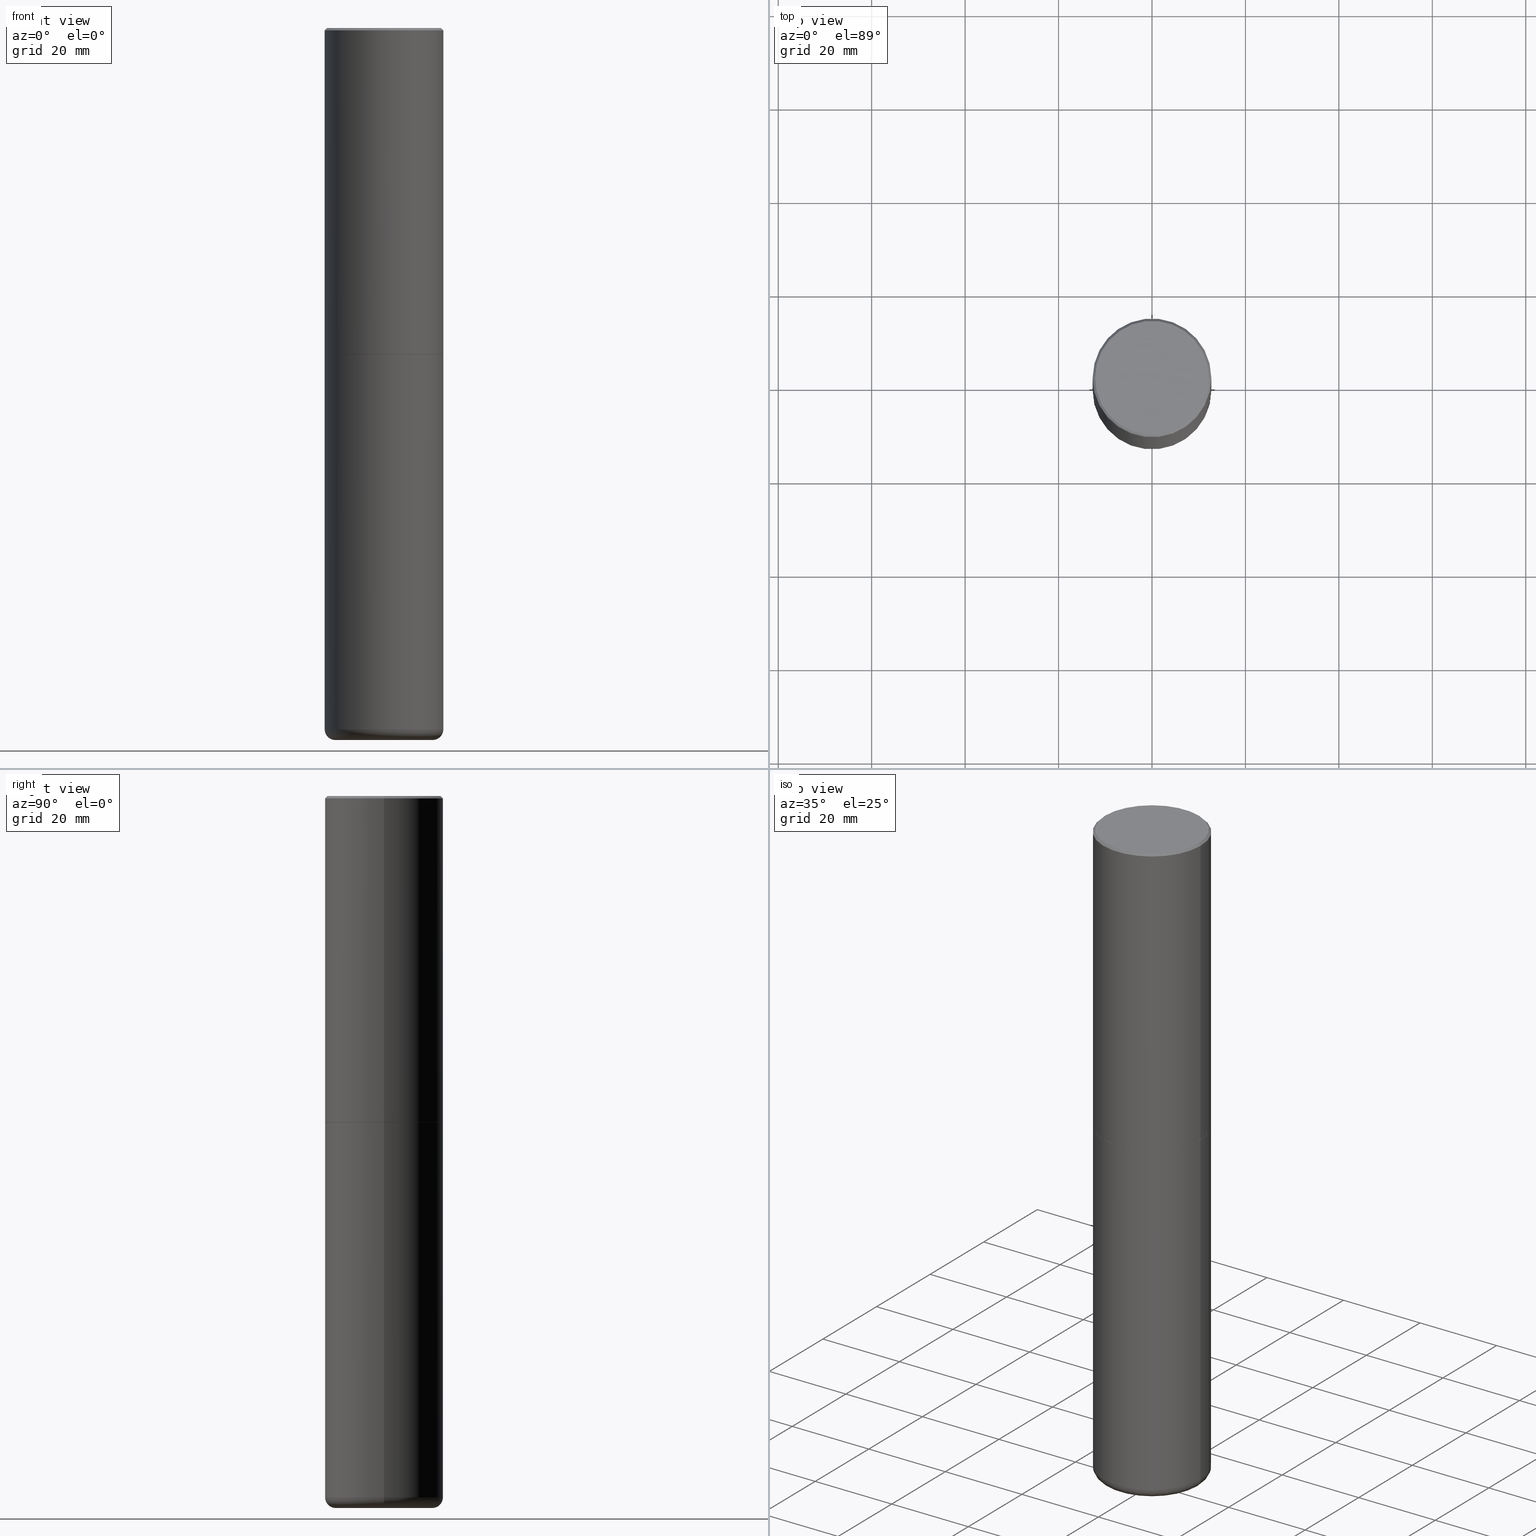
[diagram: canonical four-view strip — front | top / right | iso, engineering-drawing reading convention]
A machine part, canonical four-view strip (front | top / right | iso — engineering-drawing reading convention). The complete STEP part file that produces these views, byte-faithful:
ISO-10303-21;
HEADER;
FILE_DESCRIPTION (( 'STEP AP203' ),
    '1' );
FILE_NAME ('35741.STEP',
    '2022-11-02T20:58:25',
    ( '' ),
    ( '' ),
    'SwSTEP 2.0',
    'SolidWorks 2022',
    '' );
FILE_SCHEMA (( 'CONFIG_CONTROL_DESIGN' ));
ENDSEC;

DATA;
#1 = CARTESIAN_POINT ( 'NONE',  ( 6.725039217009127883E-29, -9.601573681818654592E-15, -2.750000000000000888 ) ) ;
#2 = ORIENTED_EDGE ( 'NONE', *, *, #136, .T. ) ;
#3 = CONICAL_SURFACE ( 'NONE', #461, 0.4999999999999990563, 0.7853981633974477239 ) ;
#4 = CONICAL_SURFACE ( 'NONE', #184, 0.4092146118051471215, 1.562069680534950544 ) ;
#5 = FACE_OUTER_BOUND ( 'NONE', #98, .T. ) ;
#6 = LINE ( 'NONE', #235, #170 ) ;
#7 = FACE_OUTER_BOUND ( 'NONE', #111, .T. ) ;
#8 = VERTEX_POINT ( 'NONE', #279 ) ;
#9 = EDGE_CURVE ( 'NONE', #137, #252, #268, .T. ) ;
#10 = CIRCLE ( 'NONE', #102, 0.09000000000000060729 ) ;
#11 = CIRCLE ( 'NONE', #139, 0.3558846118051471330 ) ;
#12 = LINE ( 'NONE', #477, #300 ) ;
#13 = EDGE_LOOP ( 'NONE', ( #172, #311 ) ) ;
#14 = PRODUCT_DEFINITION_SHAPE ( 'NONE', 'NONE',  #372 ) ;
#15 = DIRECTION ( 'NONE',  ( -2.445468806185136597E-29, 3.491481338843145583E-15, 1.000000000000000000 ) ) ;
#16 = ORIENTED_EDGE ( 'NONE', *, *, #44, .T. ) ;
#17 = VERTEX_POINT ( 'NONE', #460 ) ;
#18 = ORIENTED_EDGE ( 'NONE', *, *, #475, .T. ) ;
#19 = LINE ( 'NONE', #86, #183 ) ;
#20 = CIRCLE ( 'NONE', #249, 0.4999999999999990563 ) ;
#21 = PLANE ( 'NONE',  #367 ) ;
#22 = DIRECTION ( 'NONE',  ( 1.000000000000000000, -6.982962677686266711E-15, 4.876176775795935793E-29 ) ) ;
#23 = APPROVAL_STATUS ( 'not_yet_approved' ) ;
#24 = EDGE_CURVE ( 'NONE', #175, #492, #241, .T. ) ;
#25 = APPROVAL_DATE_TIME ( #224, #331 ) ;
#26 = VECTOR ( 'NONE', #198, 39.37007874015748143 ) ;
#27 = PERSON_AND_ORGANIZATION ( #385, #50 ) ;
#28 = CARTESIAN_POINT ( 'NONE',  ( 1.445272902499044541E-28, -2.063466667760496652E-14, -5.910003426924223646 ) ) ;
#29 = COORDINATED_UNIVERSAL_TIME_OFFSET ( 5, 0, .BEHIND. ) ;
#30 = ADVANCED_FACE ( 'NONE', ( #267 ), #120, .T. ) ;
#31 = DIRECTION ( 'NONE',  ( -2.445468806185136877E-29, 3.491481338843145188E-15, 1.000000000000000000 ) ) ;
#32 = CARTESIAN_POINT ( 'NONE',  ( 6.722593748202942280E-29, -9.598082200479810007E-15, -2.749000000000000554 ) ) ;
#33 = DIRECTION ( 'NONE',  ( -2.445468806185136597E-29, 3.491481338843145583E-15, 1.000000000000000000 ) ) ;
#34 = AXIS2_PLACEMENT_3D ( 'NONE', #166, #456, #348 ) ;
#35 = DIRECTION ( 'NONE',  ( -6.982962677686266711E-15, -1.000000000000000000, 3.491481338843145583E-15 ) ) ;
#36 = ORIENTED_EDGE ( 'NONE', *, *, #343, .F. ) ;
#37 = FACE_OUTER_BOUND ( 'NONE', #278, .T. ) ;
#38 = ORIENTED_EDGE ( 'NONE', *, *, #85, .F. ) ;
#39 = DIRECTION ( 'NONE',  ( 1.000000000000000000, -6.982962677686265133E-15, 0.000000000000000000 ) ) ;
#40 = AXIS2_PLACEMENT_3D ( 'NONE', #132, #171, #39 ) ;
#41 = LINE ( 'NONE', #318, #418 ) ;
#42 = ORIENTED_EDGE ( 'NONE', *, *, #76, .F. ) ;
#43 = LINE ( 'NONE', #200, #58 ) ;
#44 = EDGE_CURVE ( 'NONE', #357, #17, #48, .T. ) ;
#45 = DIRECTION ( 'NONE',  ( 0.7071067811865471286, -7.319954787623254468E-15, -0.7071067811865479058 ) ) ;
#46 = LINE ( 'NONE', #424, #236 ) ;
#47 = ORIENTED_EDGE ( 'NONE', *, *, #475, .F. ) ;
#48 = CIRCLE ( 'NONE', #138, 0.4092146118051471215 ) ;
#49 = AXIS2_PLACEMENT_3D ( 'NONE', #439, #107, #156 ) ;
#50 = ORGANIZATION ( 'UNSPECIFIED', 'UNSPECIFIED', '' ) ;
#51 = DIRECTION ( 'NONE',  ( 1.000000000000000000, -6.982962677686266711E-15, 0.000000000000000000 ) ) ;
#52 = ORIENTED_EDGE ( 'NONE', *, *, #390, .T. ) ;
#53 = ORIENTED_EDGE ( 'NONE', *, *, #298, .F. ) ;
#54 = DIRECTION ( 'NONE',  ( -2.445468806185136597E-29, 3.491481338843145583E-15, 1.000000000000000000 ) ) ;
#55 = CARTESIAN_POINT ( 'NONE',  ( 1.467281283711081734E-28, -2.094888803305886955E-14, -5.999999999999999112 ) ) ;
#56 = DIRECTION ( 'NONE',  ( -2.445468806185136597E-29, 3.491481338843145583E-15, 1.000000000000000000 ) ) ;
#57 = VECTOR ( 'NONE', #94, 39.37007874015748854 ) ;
#58 = VECTOR ( 'NONE', #351, 39.37007874015748143 ) ;
#59 = DIRECTION ( 'NONE',  ( -2.445468806185136597E-29, 3.491481338843145583E-15, 1.000000000000000000 ) ) ;
#60 = PERSON_AND_ORGANIZATION_ROLE ( 'creator' ) ;
#61 = CC_DESIGN_PERSON_AND_ORGANIZATION_ASSIGNMENT ( #289, #432, ( #471 ) ) ;
#62 =( LENGTH_UNIT ( ) NAMED_UNIT ( * ) SI_UNIT ( $, .METRE. ) );
#63 = CC_DESIGN_PERSON_AND_ORGANIZATION_ASSIGNMENT ( #27, #186, ( #308 ) ) ;
#64 = PERSON_AND_ORGANIZATION ( #385, #50 ) ;
#65 = AXIS2_PLACEMENT_3D ( 'NONE', #410, #368, #112 ) ;
#66 = LINE ( 'NONE', #483, #160 ) ;
#67 = ADVANCED_FACE ( 'NONE', ( #208 ), #416, .T. ) ;
#68 = PERSON_AND_ORGANIZATION_ROLE ( 'classification_officer' ) ;
#69 = CARTESIAN_POINT ( 'NONE',  ( 6.722593748202942280E-29, -9.598082200479810007E-15, -2.749000000000000554 ) ) ;
#70 = DIRECTION ( 'NONE',  ( 1.000000000000000000, -6.982962677686267499E-15, 4.876431871984425487E-29 ) ) ;
#71 = CARTESIAN_POINT ( 'NONE',  ( 0.4799999999999988165, -3.396558832296475394E-15, 1.707404996042524007E-17 ) ) ;
#72 = ORIENTED_EDGE ( 'NONE', *, *, #103, .F. ) ;
#73 = APPROVAL_PERSON_ORGANIZATION ( #293, #331, #400 ) ;
#74 = UNCERTAINTY_MEASURE_WITH_UNIT (LENGTH_MEASURE( 1.000000000000000082E-05 ), #476, 'distance_accuracy_value', 'NONE');
#75 = FACE_OUTER_BOUND ( 'NONE', #383, .T. ) ;
#76 = EDGE_CURVE ( 'NONE', #492, #357, #287, .T. ) ;
#77 = DIRECTION ( 'NONE',  ( -2.445468806185136597E-29, 3.491481338843145583E-15, 1.000000000000000000 ) ) ;
#78 = EDGE_LOOP ( 'NONE', ( #342, #240, #447, #100 ) ) ;
#79 = ORIENTED_EDGE ( 'NONE', *, *, #103, .T. ) ;
#80 = DIRECTION ( 'NONE',  ( -2.445468806185136877E-29, 3.491481338843145188E-15, 1.000000000000000000 ) ) ;
#81 = CIRCLE ( 'NONE', #214, 0.5000000000000000000 ) ;
#82 = ORIENTED_EDGE ( 'NONE', *, *, #219, .T. ) ;
#83 = EDGE_CURVE ( 'NONE', #88, #248, #408, .T. ) ;
#84 = CARTESIAN_POINT ( 'NONE',  ( -0.5000000000000000000, -1.156540650091130805E-14, -2.750000000000000444 ) ) ;
#85 = EDGE_CURVE ( 'NONE', #199, #88, #19, .T. ) ;
#86 = CARTESIAN_POINT ( 'NONE',  ( 0.4999999999999990563, -3.500078625662622769E-15, -0.02000000000000020164 ) ) ;
#87 = CARTESIAN_POINT ( 'NONE',  ( 0.4989999999999999991, -1.308607205798410036E-14, -2.750000000000000888 ) ) ;
#88 = VERTEX_POINT ( 'NONE', #340 ) ;
#89 = ORIENTED_EDGE ( 'NONE', *, *, #343, .T. ) ;
#90 = DIRECTION ( 'NONE',  ( 1.000000000000000000, -6.982962677686265133E-15, 4.883557194083112340E-29 ) ) ;
#91 = CARTESIAN_POINT ( 'NONE',  ( 4.890937612370322204E-31, -6.982962677686361867E-17, -0.02000000000000020164 ) ) ;
#92 = ORIENTED_EDGE ( 'NONE', *, *, #164, .F. ) ;
#93 = DIRECTION ( 'NONE',  ( -2.445468806185136597E-29, 3.491481338843145583E-15, 1.000000000000000000 ) ) ;
#94 = DIRECTION ( 'NONE',  ( -0.9999619230641714207, 6.952228252019259966E-15, -0.008726535498348361383 ) ) ;
#95 = CONICAL_SURFACE ( 'NONE', #376, 0.3558846118051471330, 1.535889741755008364 ) ;
#96 = CC_DESIGN_APPROVAL ( #470, ( #436 ) ) ;
#97 = CARTESIAN_POINT ( 'NONE',  ( 3.491481338843200408E-15, 0.4999999999999903411, -2.750000000000002220 ) ) ;
#98 = EDGE_LOOP ( 'NONE', ( #119, #231 ) ) ;
#99 = DIRECTION ( 'NONE',  ( 0.000000000000000000, 0.000000000000000000, 1.000000000000000000 ) ) ;
#100 = ORIENTED_EDGE ( 'NONE', *, *, #404, .F. ) ;
#101 = COORDINATED_UNIVERSAL_TIME_OFFSET ( 5, 0, .BEHIND. ) ;
#102 = AXIS2_PLACEMENT_3D ( 'NONE', #490, #35, #341 ) ;
#103 = EDGE_CURVE ( 'NONE', #413, #321, #81, .T. ) ;
#104 = DATE_AND_TIME ( #254, #378 ) ;
#105 = CARTESIAN_POINT ( 'NONE',  ( 0.000000000000000000, 0.000000000000000000, 0.000000000000000000 ) ) ;
#106 = SECURITY_CLASSIFICATION_LEVEL ( 'unclassified' ) ;
#107 = DIRECTION ( 'NONE',  ( -2.438088387897960049E-29, 3.491481338843145188E-15, 1.000000000000000000 ) ) ;
#108 = CIRCLE ( 'NONE', #478, 0.4799999999999988165 ) ;
#109 = DESIGN_CONTEXT ( 'detailed design', #482, 'design' ) ;
#110 = CARTESIAN_POINT ( 'NONE',  ( -0.4100000000000003642, -1.772144146098855475E-14, -5.910003426924223646 ) ) ;
#111 = EDGE_LOOP ( 'NONE', ( #472, #52, #47 ) ) ;
#112 = DIRECTION ( 'NONE',  ( 1.000000000000000000, -6.982962677686269077E-15, 0.000000000000000000 ) ) ;
#113 = DIRECTION ( 'NONE',  ( 1.000000000000000000, -6.982962677686267499E-15, 4.876176775795935793E-29 ) ) ;
#114 = ORIENTED_EDGE ( 'NONE', *, *, #433, .T. ) ;
#115 = DIRECTION ( 'NONE',  ( -0.9993908270190957621, 6.856857904024551737E-15, -0.03489949670250264147 ) ) ;
#116 = EDGE_CURVE ( 'NONE', #357, #315, #204, .T. ) ;
#117 = PLANE ( 'NONE',  #49 ) ;
#118 = CONICAL_SURFACE ( 'NONE', #442, 0.4989999999999999991, 0.7853981633972775267 ) ;
#119 = ORIENTED_EDGE ( 'NONE', *, *, #164, .T. ) ;
#120 = CYLINDRICAL_SURFACE ( 'NONE', #330, 0.5000000000000000000 ) ;
#121 = CARTESIAN_POINT ( 'NONE',  ( -0.4092146118051471215, -1.756159816700647873E-14, -5.999999999999999112 ) ) ;
#122 = ORIENTED_EDGE ( 'NONE', *, *, #350, .F. ) ;
#123 = DIRECTION ( 'NONE',  ( 0.7071067811864267805, -2.468850131080992517E-15, 0.7071067811866682540 ) ) ;
#124 = EDGE_CURVE ( 'NONE', #199, #167, #108, .T. ) ;
#125 = CARTESIAN_POINT ( 'NONE',  ( -0.4999999999999990563, 3.421651712066262957E-15, -0.02000000000000020164 ) ) ;
#126 = MANIFOLD_SOLID_BREP ( 'Body-Move/Copy2[2]', #407 ) ;
#127 = AXIS2_PLACEMENT_3D ( 'NONE', #148, #153, #262 ) ;
#128 = DIRECTION ( 'NONE',  ( 1.000000000000000000, -6.982962677686266711E-15, 0.000000000000000000 ) ) ;
#129 = DIRECTION ( 'NONE',  ( 1.000000000000000000, -6.982962677686267499E-15, 4.876176775795935793E-29 ) ) ;
#130 = EDGE_LOOP ( 'NONE', ( #319, #154, #131, #324 ) ) ;
#131 = ORIENTED_EDGE ( 'NONE', *, *, #226, .F. ) ;
#132 = CARTESIAN_POINT ( 'NONE',  ( 6.725039217009127883E-29, -9.601573681818654592E-15, -2.750000000000000888 ) ) ;
#133 = ORIENTED_EDGE ( 'NONE', *, *, #298, .T. ) ;
#134 = CARTESIAN_POINT ( 'NONE',  ( -0.4092146118051471215, -1.809135767165965469E-14, -5.999999999999999112 ) ) ;
#135 = ORIENTED_EDGE ( 'NONE', *, *, #316, .F. ) ;
#136 = EDGE_CURVE ( 'NONE', #315, #252, #485, .T. ) ;
#137 = VERTEX_POINT ( 'NONE', #373 ) ;
#138 = AXIS2_PLACEMENT_3D ( 'NONE', #55, #282, #420 ) ;
#139 = AXIS2_PLACEMENT_3D ( 'NONE', #288, #59, #434 ) ;
#140 = MECHANICAL_CONTEXT ( 'NONE', #273, 'mechanical' ) ;
#141 = ORIENTED_EDGE ( 'NONE', *, *, #116, .F. ) ;
#142 = ADVANCED_FACE ( 'NONE', ( #37 ), #118, .T. ) ;
#143 = CLOSED_SHELL ( 'NONE', ( #465, #67, #30, #263, #291, #480, #488, #244, #425 ) ) ;
#144 = CIRCLE ( 'NONE', #325, 0.5000000000000000000 ) ;
#145 = DIRECTION ( 'NONE',  ( 2.445468806185136597E-29, -3.491481338843145583E-15, -1.000000000000000000 ) ) ;
#146 = SHAPE_DEFINITION_REPRESENTATION ( #14, #305 ) ;
#147 = DATE_TIME_ROLE ( 'creation_date' ) ;
#148 = CARTESIAN_POINT ( 'NONE',  ( 6.725039217009127883E-29, -9.601573681818654592E-15, -2.750000000000000888 ) ) ;
#149 = COORDINATED_UNIVERSAL_TIME_OFFSET ( 5, 0, .BEHIND. ) ;
#150 = AXIS2_PLACEMENT_3D ( 'NONE', #423, #54, #90 ) ;
#151 = DIRECTION ( 'NONE',  ( -2.445468806185136597E-29, 3.491481338843145583E-15, 1.000000000000000000 ) ) ;
#152 = CC_DESIGN_DATE_AND_TIME_ASSIGNMENT ( #258, #397, ( #436 ) ) ;
#153 = DIRECTION ( 'NONE',  ( -2.445468806185136597E-29, 3.491481338843145583E-15, 1.000000000000000000 ) ) ;
#154 = ORIENTED_EDGE ( 'NONE', *, *, #116, .T. ) ;
#155 = ADVANCED_FACE ( 'NONE', ( #75 ), #269, .T. ) ;
#156 = DIRECTION ( 'NONE',  ( 1.000000000000000000, -6.982962677686265922E-15, 4.876176775795935793E-29 ) ) ;
#157 = ORIENTED_EDGE ( 'NONE', *, *, #309, .T. ) ;
#158 = CC_DESIGN_DATE_AND_TIME_ASSIGNMENT ( #188, #147, ( #372 ) ) ;
#159 = CARTESIAN_POINT ( 'NONE',  ( 0.5000000000000000000, -1.308956353932294336E-14, -2.749000000000000554 ) ) ;
#160 = VECTOR ( 'NONE', #31, 39.37007874015748143 ) ;
#161 = EDGE_LOOP ( 'NONE', ( #141, #16, #457, #36 ) ) ;
#162 = LOCAL_TIME ( 16, 58, 25.00000000000000000, #438 ) ;
#163 = DIRECTION ( 'NONE',  ( 2.438088387897960049E-29, -3.491481338843145188E-15, -1.000000000000000000 ) ) ;
#164 = EDGE_CURVE ( 'NONE', #167, #199, #285, .T. ) ;
#165 = ORIENTED_EDGE ( 'NONE', *, *, #83, .F. ) ;
#166 = CARTESIAN_POINT ( 'NONE',  ( 1.467167470649067006E-28, -2.094726308416916987E-14, -5.999534596140719600 ) ) ;
#167 = VERTEX_POINT ( 'NONE', #196 ) ;
#168 = CARTESIAN_POINT ( 'NONE',  ( 4.890937612370322204E-31, -6.982962677686361867E-17, -0.02000000000000020164 ) ) ;
#169 = EDGE_LOOP ( 'NONE', ( #474, #286 ) ) ;
#170 = VECTOR ( 'NONE', #276, 39.37007874015748143 ) ;
#171 = DIRECTION ( 'NONE',  ( -2.445468806185136597E-29, 3.491481338843145583E-15, 1.000000000000000000 ) ) ;
#172 = ORIENTED_EDGE ( 'NONE', *, *, #9, .T. ) ;
#173 = ADVANCED_FACE ( 'NONE', ( #344 ), #117, .F. ) ;
#174 = DIRECTION ( 'NONE',  ( 1.000000000000000000, 0.000000000000000000, 0.000000000000000000 ) ) ;
#175 = VERTEX_POINT ( 'NONE', #446 ) ;
#176 = EDGE_LOOP ( 'NONE', ( #18, #114, #375, #42 ) ) ;
#177 = AXIS2_PLACEMENT_3D ( 'NONE', #313, #77, #387 ) ;
#178 = CARTESIAN_POINT ( 'NONE',  ( 1.467281283711081734E-28, -2.094888803305886955E-14, -5.999999999999999112 ) ) ;
#179 = EDGE_CURVE ( 'NONE', #321, #413, #215, .T. ) ;
#180 = EDGE_CURVE ( 'NONE', #321, #88, #66, .T. ) ;
#181 =( NAMED_UNIT ( * ) PLANE_ANGLE_UNIT ( ) SI_UNIT ( $, .RADIAN. ) );
#182 =( NAMED_UNIT ( * ) SI_UNIT ( $, .STERADIAN. ) SOLID_ANGLE_UNIT ( ) );
#183 = VECTOR ( 'NONE', #45, 39.37007874015748143 ) ;
#184 = AXIS2_PLACEMENT_3D ( 'NONE', #421, #202, #353 ) ;
#185 = PERSON_AND_ORGANIZATION ( #385, #50 ) ;
#186 = PERSON_AND_ORGANIZATION_ROLE ( 'creator' ) ;
#187 = DIRECTION ( 'NONE',  ( -2.445468806185136597E-29, 3.491481338843145583E-15, 1.000000000000000000 ) ) ;
#188 = DATE_AND_TIME ( #301, #428 ) ;
#189 = CYLINDRICAL_SURFACE ( 'NONE', #366, 0.4999999999999995004 ) ;
#190 = TOROIDAL_SURFACE ( 'NONE', #345, 0.4100000000000003642, 0.09000000000000064893 ) ;
#191 = DIRECTION ( 'NONE',  ( 1.000000000000000000, -6.982962677686265133E-15, 4.883557194083112340E-29 ) ) ;
#192 = ADVANCED_FACE ( 'NONE', ( #297 ), #275, .T. ) ;
#193 = DIRECTION ( 'NONE',  ( 7.105427357601001859E-15, 1.000000000000000000, -3.491481338843145583E-15 ) ) ;
#194 = ORIENTED_EDGE ( 'NONE', *, *, #350, .T. ) ;
#195 = EDGE_LOOP ( 'NONE', ( #339, #2, #284, #122 ) ) ;
#196 = CARTESIAN_POINT ( 'NONE',  ( -0.4799999999999988165, 3.386736898677831703E-15, 1.707404996037808406E-17 ) ) ;
#197 = CARTESIAN_POINT ( 'NONE',  ( 4.890937612370322204E-31, -6.982962677686361867E-17, -0.02000000000000020164 ) ) ;
#198 = DIRECTION ( 'NONE',  ( -2.445468806185136877E-29, 3.491481338843145188E-15, 1.000000000000000000 ) ) ;
#199 = VERTEX_POINT ( 'NONE', #71 ) ;
#200 = CARTESIAN_POINT ( 'NONE',  ( -0.4999999999999990563, 3.421651712066262957E-15, -0.02000000000000020164 ) ) ;
#201 = ORIENTED_EDGE ( 'NONE', *, *, #316, .T. ) ;
#202 = DIRECTION ( 'NONE',  ( 2.445468806185136597E-29, -3.491481338843145583E-15, -1.000000000000000000 ) ) ;
#203 = ORIENTED_EDGE ( 'NONE', *, *, #445, .F. ) ;
#204 = CIRCLE ( 'NONE', #417, 0.09000000000000060729 ) ;
#205 = EDGE_LOOP ( 'NONE', ( #464, #304, #251 ) ) ;
#206 = EDGE_CURVE ( 'NONE', #415, #8, #220, .T. ) ;
#207 = DIRECTION ( 'NONE',  ( 2.445468806185136597E-29, -3.491481338843145583E-15, -1.000000000000000000 ) ) ;
#208 = FACE_OUTER_BOUND ( 'NONE', #130, .T. ) ;
#209 = FACE_OUTER_BOUND ( 'NONE', #389, .T. ) ;
#210 = DIRECTION ( 'NONE',  ( -2.445468806185136597E-29, 3.491481338843145583E-15, 1.000000000000000000 ) ) ;
#211 = EDGE_CURVE ( 'NONE', #17, #245, #10, .T. ) ;
#212 = DIRECTION ( 'NONE',  ( -1.000000000000000000, 6.982962677686265922E-15, -4.876176775795935793E-29 ) ) ;
#213 = VERTEX_POINT ( 'NONE', #491 ) ;
#214 = AXIS2_PLACEMENT_3D ( 'NONE', #32, #93, #294 ) ;
#215 = CIRCLE ( 'NONE', #486, 0.5000000000000000000 ) ;
#216 = AXIS2_PLACEMENT_3D ( 'NONE', #329, #99, #174 ) ;
#217 = APPROVAL_ROLE ( '' ) ;
#218 = CARTESIAN_POINT ( 'NONE',  ( 1.467281283711081734E-28, -2.094888803305886955E-14, -5.999999999999999112 ) ) ;
#219 = EDGE_CURVE ( 'NONE', #213, #492, #395, .T. ) ;
#220 = CIRCLE ( 'NONE', #451, 0.4989999999999999991 ) ;
#221 = CC_DESIGN_SECURITY_CLASSIFICATION ( #436, ( #308 ) ) ;
#222 = PERSON_AND_ORGANIZATION_ROLE ( 'design_supplier' ) ;
#223 = DIRECTION ( 'NONE',  ( 1.000000000000000000, -6.982962677686269866E-15, 0.000000000000000000 ) ) ;
#224 = DATE_AND_TIME ( #261, #162 ) ;
#225 = FACE_OUTER_BOUND ( 'NONE', #161, .T. ) ;
#226 = EDGE_CURVE ( 'NONE', #245, #315, #361, .T. ) ;
#227 = DIRECTION ( 'NONE',  ( -2.445468806185136597E-29, 3.491481338843145583E-15, 1.000000000000000000 ) ) ;
#228 = CONICAL_SURFACE ( 'NONE', #352, 0.4999999999999990563, 0.7853981633974477239 ) ;
#229 = AXIS2_PLACEMENT_3D ( 'NONE', #218, #15, #356 ) ;
#230 = CARTESIAN_POINT ( 'NONE',  ( 6.725039217009127883E-29, -9.601573681818654592E-15, -2.750000000000000888 ) ) ;
#231 = ORIENTED_EDGE ( 'NONE', *, *, #124, .T. ) ;
#232 = CARTESIAN_POINT ( 'NONE',  ( -0.5000000000000000000, 3.552713678800500929E-15, -2.459467545127452891E-29 ) ) ;
#233 = CARTESIAN_POINT ( 'NONE',  ( 3.351822085289399659E-15, 0.4799999999999988165, -1.667374017664504893E-15 ) ) ;
#234 = DIRECTION ( 'NONE',  ( -2.445468806185136597E-29, 3.491481338843145583E-15, 1.000000000000000000 ) ) ;
#235 = CARTESIAN_POINT ( 'NONE',  ( -0.4989999999999999991, -6.055965430375753882E-15, -2.750000000000000888 ) ) ;
#236 = VECTOR ( 'NONE', #80, 39.37007874015748143 ) ;
#237 = CC_DESIGN_PERSON_AND_ORGANIZATION_ASSIGNMENT ( #332, #68, ( #436 ) ) ;
#238 = LINE ( 'NONE', #380, #26 ) ;
#239 = ORIENTED_EDGE ( 'NONE', *, *, #136, .F. ) ;
#240 = ORIENTED_EDGE ( 'NONE', *, *, #85, .T. ) ;
#241 = LINE ( 'NONE', #448, #274 ) ;
#242 = CARTESIAN_POINT ( 'NONE',  ( 6.725039217009125641E-29, -9.601573681818653015E-15, -2.750000000000000444 ) ) ;
#243 = ORIENTED_EDGE ( 'NONE', *, *, #179, .F. ) ;
#244 = ADVANCED_FACE ( 'NONE', ( #225 ), #190, .T. ) ;
#245 = VERTEX_POINT ( 'NONE', #370 ) ;
#246 = ADVANCED_FACE ( 'NONE', ( #333 ), #189, .T. ) ;
#247 = DIRECTION ( 'NONE',  ( 0.9993908270190957621, -6.978169709227547799E-15, -0.03489949670250264147 ) ) ;
#248 = VERTEX_POINT ( 'NONE', #125 ) ;
#249 = AXIS2_PLACEMENT_3D ( 'NONE', #91, #271, #51 ) ;
#250 = APPROVAL ( #23, 'UNSPECIFIED' ) ;
#251 = ORIENTED_EDGE ( 'NONE', *, *, #219, .F. ) ;
#252 = VERTEX_POINT ( 'NONE', #84 ) ;
#253 = APPLICATION_PROTOCOL_DEFINITION ( 'international standard', 'config_control_design', 1994, #482 ) ;
#254 = CALENDAR_DATE ( 2022, 2, 11 ) ;
#255 = VECTOR ( 'NONE', #403, 39.37007874015748143 ) ;
#256 = APPROVAL_DATE_TIME ( #104, #250 ) ;
#257 = EDGE_CURVE ( 'NONE', #248, #88, #20, .T. ) ;
#258 = DATE_AND_TIME ( #440, #489 ) ;
#259 = CARTESIAN_POINT ( 'NONE',  ( -4.175405657340879278E-46, 5.961372681521788801E-32, 1.707404996040164512E-17 ) ) ;
#260 = CIRCLE ( 'NONE', #40, 0.4989999999999999991 ) ;
#261 = CALENDAR_DATE ( 2022, 2, 11 ) ;
#262 = DIRECTION ( 'NONE',  ( 1.000000000000000000, -6.982962677686265133E-15, 0.000000000000000000 ) ) ;
#263 = ADVANCED_FACE ( 'NONE', ( #7 ), #95, .F. ) ;
#264 = CARTESIAN_POINT ( 'NONE',  ( 1.467167470649067006E-28, -2.094726308416916987E-14, -5.999534596140719600 ) ) ;
#265 = DIRECTION ( 'NONE',  ( -1.000000000000000000, 7.105427357601006592E-15, 0.000000000000000000 ) ) ;
#266 = ORIENTED_EDGE ( 'NONE', *, *, #76, .T. ) ;
#267 = FACE_OUTER_BOUND ( 'NONE', #195, .T. ) ;
#268 = CIRCLE ( 'NONE', #459, 0.5000000000000000000 ) ;
#269 = CYLINDRICAL_SURFACE ( 'NONE', #386, 0.4999999999999995004 ) ;
#270 = DIRECTION ( 'NONE',  ( -2.445468806185136597E-29, 3.491481338843145583E-15, 1.000000000000000000 ) ) ;
#271 = DIRECTION ( 'NONE',  ( -2.445468806185136597E-29, 3.491481338843145583E-15, 1.000000000000000000 ) ) ;
#272 = CARTESIAN_POINT ( 'NONE',  ( -0.5000000000000001110, -1.156540650091130647E-14, -5.910003426924223646 ) ) ;
#273 = APPLICATION_CONTEXT ( 'configuration controlled 3d designs of mechanical parts and assemblies' ) ;
#274 = VECTOR ( 'NONE', #115, 39.37007874015747433 ) ;
#275 = CONICAL_SURFACE ( 'NONE', #127, 0.4989999999999999991, 0.7853981633972775267 ) ;
#276 = DIRECTION ( 'NONE',  ( -0.7071067811864267805, 7.493145998869918709E-15, 0.7071067811866682540 ) ) ;
#277 =( GEOMETRIC_REPRESENTATION_CONTEXT ( 3 ) GLOBAL_UNCERTAINTY_ASSIGNED_CONTEXT ( ( #74 ) ) GLOBAL_UNIT_ASSIGNED_CONTEXT ( ( #476, #181, #182 ) ) REPRESENTATION_CONTEXT ( 'NONE', 'WORKASPACE' ) );
#278 = EDGE_LOOP ( 'NONE', ( #135, #455, #133, #72 ) ) ;
#279 = CARTESIAN_POINT ( 'NONE',  ( 0.4989999999999999991, -1.308607205798410036E-14, -2.750000000000000888 ) ) ;
#280 = ADVANCED_FACE ( 'NONE', ( #466 ), #3, .T. ) ;
#281 = FACE_OUTER_BOUND ( 'NONE', #450, .T. ) ;
#282 = DIRECTION ( 'NONE',  ( -2.445468806185136597E-29, 3.491481338843145583E-15, 1.000000000000000000 ) ) ;
#283 = DIRECTION ( 'NONE',  ( -1.000000000000000000, 6.982962677686269866E-15, 0.000000000000000000 ) ) ;
#284 = ORIENTED_EDGE ( 'NONE', *, *, #9, .F. ) ;
#285 = CIRCLE ( 'NONE', #336, 0.4799999999999988165 ) ;
#286 = ORIENTED_EDGE ( 'NONE', *, *, #206, .F. ) ;
#287 = LINE ( 'NONE', #134, #57 ) ;
#288 = CARTESIAN_POINT ( 'NONE',  ( 1.467167470649067006E-28, -2.094726308416916987E-14, -5.999534596140719600 ) ) ;
#289 = PERSON_AND_ORGANIZATION ( #385, #50 ) ;
#290 = AXIS2_PLACEMENT_3D ( 'NONE', #233, #163, #414 ) ;
#291 = ADVANCED_FACE ( 'NONE', ( #310 ), #307, .F. ) ;
#292 = FACE_OUTER_BOUND ( 'NONE', #13, .T. ) ;
#293 = PERSON_AND_ORGANIZATION ( #385, #50 ) ;
#294 = DIRECTION ( 'NONE',  ( 1.000000000000000000, -6.982962677686266711E-15, 0.000000000000000000 ) ) ;
#295 = CC_DESIGN_PERSON_AND_ORGANIZATION_ASSIGNMENT ( #64, #222, ( #308 ) ) ;
#296 = APPROVAL_DATE_TIME ( #481, #470 ) ;
#297 = FACE_OUTER_BOUND ( 'NONE', #468, .T. ) ;
#298 = EDGE_CURVE ( 'NONE', #8, #321, #454, .T. ) ;
#299 = AXIS2_PLACEMENT_3D ( 'NONE', #264, #443, #223 ) ;
#300 = VECTOR ( 'NONE', #362, 39.37007874015748854 ) ;
#301 = CALENDAR_DATE ( 2022, 2, 11 ) ;
#302 = DIRECTION ( 'NONE',  ( -2.445468806185136597E-29, 3.491481338843145583E-15, 1.000000000000000000 ) ) ;
#303 = DIRECTION ( 'NONE',  ( -2.445468806185136597E-29, 3.491481338843145583E-15, 1.000000000000000000 ) ) ;
#304 = ORIENTED_EDGE ( 'NONE', *, *, #24, .T. ) ;
#305 = ADVANCED_BREP_SHAPE_REPRESENTATION ( '35741', ( #444, #126, #216 ), #277 ) ;
#306 = CARTESIAN_POINT ( 'NONE',  ( 0.000000000000000000, 0.000000000000000000, 0.000000000000000000 ) ) ;
#307 = CONICAL_SURFACE ( 'NONE', #34, 0.3558846118051471330, 1.535889741755008364 ) ;
#308 = PRODUCT_DEFINITION_FORMATION_WITH_SPECIFIED_SOURCE ( 'ANY', '', #471, .NOT_KNOWN. ) ;
#309 = EDGE_CURVE ( 'NONE', #8, #415, #260, .T. ) ;
#310 = FACE_OUTER_BOUND ( 'NONE', #205, .T. ) ;
#311 = ORIENTED_EDGE ( 'NONE', *, *, #377, .T. ) ;
#312 = EDGE_LOOP ( 'NONE', ( #38, #92, #384, #467 ) ) ;
#313 = CARTESIAN_POINT ( 'NONE',  ( 1.445272902499044541E-28, -2.063466667760496652E-14, -5.910003426924223646 ) ) ;
#314 = DIRECTION ( 'NONE',  ( -1.000000000000000000, 6.982962677686266711E-15, 0.000000000000000000 ) ) ;
#315 = VERTEX_POINT ( 'NONE', #272 ) ;
#316 = EDGE_CURVE ( 'NONE', #415, #413, #6, .T. ) ;
#317 = VECTOR ( 'NONE', #123, 39.37007874015748143 ) ;
#318 = CARTESIAN_POINT ( 'NONE',  ( 0.3558846118051471330, -2.338880875089607986E-14, -5.999534596140719600 ) ) ;
#319 = ORIENTED_EDGE ( 'NONE', *, *, #445, .T. ) ;
#320 = PLANE ( 'NONE',  #290 ) ;
#321 = VERTEX_POINT ( 'NONE', #159 ) ;
#322 = LENGTH_MEASURE_WITH_UNIT ( LENGTH_MEASURE( 0.02539999999999999897 ), #62 );
#323 = ORIENTED_EDGE ( 'NONE', *, *, #377, .F. ) ;
#324 = ORIENTED_EDGE ( 'NONE', *, *, #211, .F. ) ;
#325 = AXIS2_PLACEMENT_3D ( 'NONE', #242, #374, #349 ) ;
#326 = CC_DESIGN_APPROVAL ( #331, ( #308 ) ) ;
#327 = CARTESIAN_POINT ( 'NONE',  ( -0.3558846118051471330, -1.846213412237096104E-14, -5.999534596140719600 ) ) ;
#328 = ADVANCED_FACE ( 'NONE', ( #5 ), #320, .F. ) ;
#329 = CARTESIAN_POINT ( 'NONE',  ( 0.000000000000000000, 0.000000000000000000, 0.000000000000000000 ) ) ;
#330 = AXIS2_PLACEMENT_3D ( 'NONE', #409, #270, #411 ) ;
#331 = APPROVAL ( #365, 'UNSPECIFIED' ) ;
#332 = PERSON_AND_ORGANIZATION ( #385, #50 ) ;
#333 = FACE_OUTER_BOUND ( 'NONE', #381, .T. ) ;
#334 = APPROVAL_STATUS ( 'not_yet_approved' ) ;
#335 = CARTESIAN_POINT ( 'NONE',  ( 0.000000000000000000, 0.000000000000000000, 0.000000000000000000 ) ) ;
#336 = AXIS2_PLACEMENT_3D ( 'NONE', #405, #302, #70 ) ;
#337 = AXIS2_PLACEMENT_3D ( 'NONE', #178, #145, #469 ) ;
#338 = DIRECTION ( 'NONE',  ( 1.000000000000000000, -6.982962677686266711E-15, 0.000000000000000000 ) ) ;
#339 = ORIENTED_EDGE ( 'NONE', *, *, #226, .T. ) ;
#340 = CARTESIAN_POINT ( 'NONE',  ( 0.4999999999999990563, -3.500078625662622769E-15, -0.02000000000000020164 ) ) ;
#341 = DIRECTION ( 'NONE',  ( 1.000000000000000000, -6.982962677686264344E-15, 0.000000000000000000 ) ) ;
#342 = ORIENTED_EDGE ( 'NONE', *, *, #124, .F. ) ;
#343 = EDGE_CURVE ( 'NONE', #315, #245, #435, .T. ) ;
#344 = FACE_OUTER_BOUND ( 'NONE', #169, .T. ) ;
#345 = AXIS2_PLACEMENT_3D ( 'NONE', #28, #303, #191 ) ;
#346 = CC_DESIGN_APPROVAL ( #250, ( #372 ) ) ;
#347 = CC_DESIGN_PERSON_AND_ORGANIZATION_ASSIGNMENT ( #396, #60, ( #372 ) ) ;
#348 = DIRECTION ( 'NONE',  ( -1.000000000000000000, 6.982962677686269866E-15, 0.000000000000000000 ) ) ;
#349 = DIRECTION ( 'NONE',  ( 1.000000000000000000, -6.982962677686266711E-15, 0.000000000000000000 ) ) ;
#350 = EDGE_CURVE ( 'NONE', #245, #137, #46, .T. ) ;
#351 = DIRECTION ( 'NONE',  ( -0.7071067811865471286, 2.468850131082252722E-15, -0.7071067811865479058 ) ) ;
#352 = AXIS2_PLACEMENT_3D ( 'NONE', #168, #419, #458 ) ;
#353 = DIRECTION ( 'NONE',  ( -1.000000000000000000, 6.982962677686265922E-15, 0.000000000000000000 ) ) ;
#354 = ORIENTED_EDGE ( 'NONE', *, *, #180, .T. ) ;
#355 = DIRECTION ( 'NONE',  ( 2.445468806185136597E-29, -3.491481338843145583E-15, -1.000000000000000000 ) ) ;
#356 = DIRECTION ( 'NONE',  ( 1.000000000000000000, -6.982962677686265922E-15, 0.000000000000000000 ) ) ;
#357 = VERTEX_POINT ( 'NONE', #121 ) ;
#358 = DIRECTION ( 'NONE',  ( 1.000000000000000000, -6.982962677686266711E-15, 0.000000000000000000 ) ) ;
#359 = FACE_OUTER_BOUND ( 'NONE', #176, .T. ) ;
#360 = ORIENTED_EDGE ( 'NONE', *, *, #393, .F. ) ;
#361 = CIRCLE ( 'NONE', #65, 0.5000000000000001110 ) ;
#362 = DIRECTION ( 'NONE',  ( 0.9999619230641714207, -6.890705306874752753E-15, -0.008726535498348361383 ) ) ;
#363 = ADVANCED_FACE ( 'NONE', ( #379 ), #228, .T. ) ;
#364 = COORDINATED_UNIVERSAL_TIME_OFFSET ( 5, 0, .BEHIND. ) ;
#365 = APPROVAL_STATUS ( 'not_yet_approved' ) ;
#366 = AXIS2_PLACEMENT_3D ( 'NONE', #335, #33, #129 ) ;
#367 = AXIS2_PLACEMENT_3D ( 'NONE', #97, #437, #212 ) ;
#368 = DIRECTION ( 'NONE',  ( -2.445468806185136597E-29, 3.491481338843145583E-15, 1.000000000000000000 ) ) ;
#369 = APPROVAL_ROLE ( '' ) ;
#370 = CARTESIAN_POINT ( 'NONE',  ( 0.5000000000000001110, -2.412614801644810303E-14, -5.910003426924223646 ) ) ;
#371 = DIRECTION ( 'NONE',  ( -2.445468806185136597E-29, 3.491481338843145583E-15, 1.000000000000000000 ) ) ;
#372 = PRODUCT_DEFINITION ( 'UNKNOWN', '', #308, #109 ) ;
#373 = CARTESIAN_POINT ( 'NONE',  ( 0.5000000000000000000, -1.309305502066178637E-14, -2.750000000000000444 ) ) ;
#374 = DIRECTION ( 'NONE',  ( -2.445468806185136597E-29, 3.491481338843145583E-15, 1.000000000000000000 ) ) ;
#375 = ORIENTED_EDGE ( 'NONE', *, *, #44, .F. ) ;
#376 = AXIS2_PLACEMENT_3D ( 'NONE', #412, #207, #283 ) ;
#377 = EDGE_CURVE ( 'NONE', #252, #137, #144, .T. ) ;
#378 = LOCAL_TIME ( 16, 58, 25.00000000000000000, #101 ) ;
#379 = FACE_OUTER_BOUND ( 'NONE', #312, .T. ) ;
#380 = CARTESIAN_POINT ( 'NONE',  ( -0.4999999999999995004, 3.552713678800497379E-15, -2.459467545127450649E-29 ) ) ;
#381 = EDGE_LOOP ( 'NONE', ( #360, #79, #354, #430 ) ) ;
#382 = CARTESIAN_POINT ( 'NONE',  ( -0.4989999999999999991, -6.050666976027531480E-15, -2.750000000000000888 ) ) ;
#383 = EDGE_LOOP ( 'NONE', ( #429, #406, #165, #422 ) ) ;
#384 = ORIENTED_EDGE ( 'NONE', *, *, #404, .T. ) ;
#385 = PERSON ( 'UNSPECIFIED', 'UNSPECIFIED', 'UNSPECIFIED', ('UNSPECIFIED'), ('UNSPECIFIED'), ('UNSPECIFIED') ) ;
#386 = AXIS2_PLACEMENT_3D ( 'NONE', #306, #187, #113 ) ;
#387 = DIRECTION ( 'NONE',  ( 1.000000000000000000, -6.982962677686269077E-15, 0.000000000000000000 ) ) ;
#388 = CIRCLE ( 'NONE', #229, 0.4092146118051471215 ) ;
#389 = EDGE_LOOP ( 'NONE', ( #239, #89, #194, #323 ) ) ;
#390 = EDGE_CURVE ( 'NONE', #175, #213, #41, .T. ) ;
#391 = ORIENTED_EDGE ( 'NONE', *, *, #433, .F. ) ;
#392 = PERSON_AND_ORGANIZATION ( #385, #50 ) ;
#393 = EDGE_CURVE ( 'NONE', #413, #248, #238, .T. ) ;
#394 = CYLINDRICAL_SURFACE ( 'NONE', #473, 0.5000000000000000000 ) ;
#395 = CIRCLE ( 'NONE', #299, 0.3558846118051471330 ) ;
#396 = PERSON_AND_ORGANIZATION ( #385, #50 ) ;
#397 = DATE_TIME_ROLE ( 'classification_date' ) ;
#398 = DIRECTION ( 'NONE',  ( 1.000000000000000000, -6.982962677686265133E-15, 0.000000000000000000 ) ) ;
#399 = LOCAL_TIME ( 16, 58, 25.00000000000000000, #29 ) ;
#400 = APPROVAL_ROLE ( '' ) ;
#401 = DIRECTION ( 'NONE',  ( 1.000000000000000000, -6.982962677686265133E-15, 0.000000000000000000 ) ) ;
#402 = PRODUCT_RELATED_PRODUCT_CATEGORY ( 'detail', '', ( #471 ) ) ;
#403 = DIRECTION ( 'NONE',  ( -2.445468806185136877E-29, 3.491481338843145188E-15, 1.000000000000000000 ) ) ;
#404 = EDGE_CURVE ( 'NONE', #167, #248, #43, .T. ) ;
#405 = CARTESIAN_POINT ( 'NONE',  ( -4.175405657340879278E-46, 5.961372681521788801E-32, 1.707404996040164512E-17 ) ) ;
#406 = ORIENTED_EDGE ( 'NONE', *, *, #393, .T. ) ;
#407 = CLOSED_SHELL ( 'NONE', ( #192, #155, #280, #363, #246, #142, #173, #328 ) ) ;
#408 = CIRCLE ( 'NONE', #426, 0.4999999999999990563 ) ;
#409 = CARTESIAN_POINT ( 'NONE',  ( 0.000000000000000000, 0.000000000000000000, 0.000000000000000000 ) ) ;
#410 = CARTESIAN_POINT ( 'NONE',  ( 1.445272902499044541E-28, -2.063466667760496652E-14, -5.910003426924223646 ) ) ;
#411 = DIRECTION ( 'NONE',  ( 1.000000000000000000, -6.982962677686266711E-15, 4.876176775795935793E-29 ) ) ;
#412 = CARTESIAN_POINT ( 'NONE',  ( 1.467167470649067006E-28, -2.094726308416916987E-14, -5.999534596140719600 ) ) ;
#413 = VERTEX_POINT ( 'NONE', #462 ) ;
#414 = DIRECTION ( 'NONE',  ( -1.000000000000000000, 6.982962677686265922E-15, -4.876176775795935793E-29 ) ) ;
#415 = VERTEX_POINT ( 'NONE', #382 ) ;
#416 = TOROIDAL_SURFACE ( 'NONE', #150, 0.4100000000000003642, 0.09000000000000064893 ) ;
#417 = AXIS2_PLACEMENT_3D ( 'NONE', #110, #193, #265 ) ;
#418 = VECTOR ( 'NONE', #247, 39.37007874015747433 ) ;
#419 = DIRECTION ( 'NONE',  ( 2.445468806185136597E-29, -3.491481338843145583E-15, -1.000000000000000000 ) ) ;
#420 = DIRECTION ( 'NONE',  ( 1.000000000000000000, -6.982962677686265922E-15, 0.000000000000000000 ) ) ;
#421 = CARTESIAN_POINT ( 'NONE',  ( 1.467281283711081734E-28, -2.094888803305886955E-14, -5.999999999999999112 ) ) ;
#422 = ORIENTED_EDGE ( 'NONE', *, *, #180, .F. ) ;
#423 = CARTESIAN_POINT ( 'NONE',  ( 1.445272902499044541E-28, -2.063466667760496652E-14, -5.910003426924223646 ) ) ;
#424 = CARTESIAN_POINT ( 'NONE',  ( 0.5000000000000000000, -3.491481338843133355E-15, 2.438088387897967896E-29 ) ) ;
#425 = ADVANCED_FACE ( 'NONE', ( #281 ), #4, .F. ) ;
#426 = AXIS2_PLACEMENT_3D ( 'NONE', #431, #210, #358 ) ;
#427 = APPLICATION_PROTOCOL_DEFINITION ( 'international standard', 'config_control_design', 1994, #273 ) ;
#428 = LOCAL_TIME ( 16, 58, 25.00000000000000000, #364 ) ;
#429 = ORIENTED_EDGE ( 'NONE', *, *, #179, .T. ) ;
#430 = ORIENTED_EDGE ( 'NONE', *, *, #257, .F. ) ;
#431 = CARTESIAN_POINT ( 'NONE',  ( 4.890937612370322204E-31, -6.982962677686361867E-17, -0.02000000000000020164 ) ) ;
#432 = PERSON_AND_ORGANIZATION_ROLE ( 'design_owner' ) ;
#433 = EDGE_CURVE ( 'NONE', #213, #17, #12, .T. ) ;
#434 = DIRECTION ( 'NONE',  ( 1.000000000000000000, -6.982962677686269866E-15, 0.000000000000000000 ) ) ;
#435 = CIRCLE ( 'NONE', #177, 0.5000000000000001110 ) ;
#436 = SECURITY_CLASSIFICATION ( '', '', #106 ) ;
#437 = DIRECTION ( 'NONE',  ( 2.438088387897960049E-29, -3.491481338843145188E-15, -1.000000000000000000 ) ) ;
#438 = COORDINATED_UNIVERSAL_TIME_OFFSET ( 5, 0, .BEHIND. ) ;
#439 = CARTESIAN_POINT ( 'NONE',  ( 6.725039217009127883E-29, -9.601573681818654592E-15, -2.750000000000000888 ) ) ;
#440 = CALENDAR_DATE ( 2022, 2, 11 ) ;
#441 = DIRECTION ( 'NONE',  ( -2.445468806185136597E-29, 3.491481338843145583E-15, 1.000000000000000000 ) ) ;
#442 = AXIS2_PLACEMENT_3D ( 'NONE', #1, #227, #398 ) ;
#443 = DIRECTION ( 'NONE',  ( -2.445468806185136597E-29, 3.491481338843145583E-15, 1.000000000000000000 ) ) ;
#444 = MANIFOLD_SOLID_BREP ( 'Body-Move/Copy2[1]', #143 ) ;
#445 = EDGE_CURVE ( 'NONE', #17, #357, #388, .T. ) ;
#446 = CARTESIAN_POINT ( 'NONE',  ( 1.464102224097647998E-28, -2.090424519251506735E-14, -5.987106831646211269 ) ) ;
#447 = ORIENTED_EDGE ( 'NONE', *, *, #83, .T. ) ;
#448 = CARTESIAN_POINT ( 'NONE',  ( -0.3558846118051471330, -1.846213412237096104E-14, -5.999534596140719600 ) ) ;
#449 = DIRECTION ( 'NONE',  ( 1.000000000000000000, -6.982962677686267499E-15, 4.876431871984425487E-29 ) ) ;
#450 = EDGE_LOOP ( 'NONE', ( #391, #82, #266, #203 ) ) ;
#451 = AXIS2_PLACEMENT_3D ( 'NONE', #230, #151, #401 ) ;
#452 = CONICAL_SURFACE ( 'NONE', #337, 0.4092146118051471215, 1.562069680534950544 ) ;
#453 = CARTESIAN_POINT ( 'NONE',  ( 6.725039217009125641E-29, -9.601573681818653015E-15, -2.750000000000000444 ) ) ;
#454 = LINE ( 'NONE', #87, #317 ) ;
#455 = ORIENTED_EDGE ( 'NONE', *, *, #206, .T. ) ;
#456 = DIRECTION ( 'NONE',  ( 2.445468806185136597E-29, -3.491481338843145583E-15, -1.000000000000000000 ) ) ;
#457 = ORIENTED_EDGE ( 'NONE', *, *, #211, .T. ) ;
#458 = DIRECTION ( 'NONE',  ( -1.000000000000000000, 6.982962677686266711E-15, 0.000000000000000000 ) ) ;
#459 = AXIS2_PLACEMENT_3D ( 'NONE', #453, #234, #128 ) ;
#460 = CARTESIAN_POINT ( 'NONE',  ( 0.4092146118051471215, -2.380641839445808757E-14, -5.999999999999999112 ) ) ;
#461 = AXIS2_PLACEMENT_3D ( 'NONE', #197, #355, #314 ) ;
#462 = CARTESIAN_POINT ( 'NONE',  ( -0.5000000000000000000, -1.281242234827831779E-15, -2.749000000000000554 ) ) ;
#463 = DIMENSIONAL_EXPONENTS ( 1.000000000000000000, 0.000000000000000000, 0.000000000000000000, 0.000000000000000000, 0.000000000000000000, 0.000000000000000000, 0.000000000000000000 ) ;
#464 = ORIENTED_EDGE ( 'NONE', *, *, #390, .F. ) ;
#465 = ADVANCED_FACE ( 'NONE', ( #359 ), #452, .F. ) ;
#466 = FACE_OUTER_BOUND ( 'NONE', #78, .T. ) ;
#467 = ORIENTED_EDGE ( 'NONE', *, *, #257, .T. ) ;
#468 = EDGE_LOOP ( 'NONE', ( #157, #201, #243, #53 ) ) ;
#469 = DIRECTION ( 'NONE',  ( -1.000000000000000000, 6.982962677686265922E-15, 0.000000000000000000 ) ) ;
#470 = APPROVAL ( #334, 'UNSPECIFIED' ) ;
#471 = PRODUCT ( '35741', '35741', '', ( #140 ) ) ;
#472 = ORIENTED_EDGE ( 'NONE', *, *, #24, .F. ) ;
#473 = AXIS2_PLACEMENT_3D ( 'NONE', #105, #56, #22 ) ;
#474 = ORIENTED_EDGE ( 'NONE', *, *, #309, .F. ) ;
#475 = EDGE_CURVE ( 'NONE', #492, #213, #11, .T. ) ;
#476 =( CONVERSION_BASED_UNIT ( 'INCH', #322 ) LENGTH_UNIT ( ) NAMED_UNIT ( #463 ) );
#477 = CARTESIAN_POINT ( 'NONE',  ( 0.4092146118051471215, -2.375630405800693736E-14, -5.999999999999999112 ) ) ;
#478 = AXIS2_PLACEMENT_3D ( 'NONE', #259, #441, #449 ) ;
#479 = APPROVAL_PERSON_ORGANIZATION ( #392, #250, #217 ) ;
#480 = ADVANCED_FACE ( 'NONE', ( #292 ), #21, .F. ) ;
#481 = DATE_AND_TIME ( #484, #399 ) ;
#482 = APPLICATION_CONTEXT ( 'configuration controlled 3d designs of mechanical parts and assemblies' ) ;
#483 = CARTESIAN_POINT ( 'NONE',  ( 0.4999999999999995004, -3.491481338843130200E-15, 2.438088387897965374E-29 ) ) ;
#484 = CALENDAR_DATE ( 2022, 2, 11 ) ;
#485 = LINE ( 'NONE', #232, #255 ) ;
#486 = AXIS2_PLACEMENT_3D ( 'NONE', #69, #371, #338 ) ;
#487 = APPROVAL_PERSON_ORGANIZATION ( #185, #470, #369 ) ;
#488 = ADVANCED_FACE ( 'NONE', ( #209 ), #394, .T. ) ;
#489 = LOCAL_TIME ( 16, 58, 25.00000000000000000, #149 ) ;
#490 = CARTESIAN_POINT ( 'NONE',  ( 0.4100000000000003642, -2.349768137545633650E-14, -5.910003426924223646 ) ) ;
#491 = CARTESIAN_POINT ( 'NONE',  ( 0.3558846118051471330, -2.338880875089607986E-14, -5.999534596140719600 ) ) ;
#492 = VERTEX_POINT ( 'NONE', #327 ) ;
ENDSEC;
END-ISO-10303-21;
